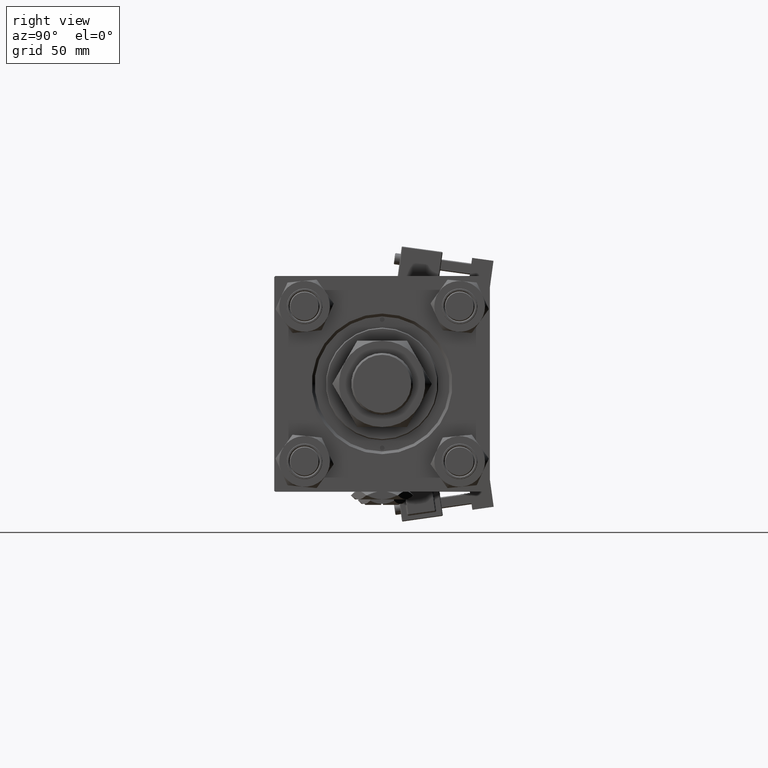
[diagram: clean part render]
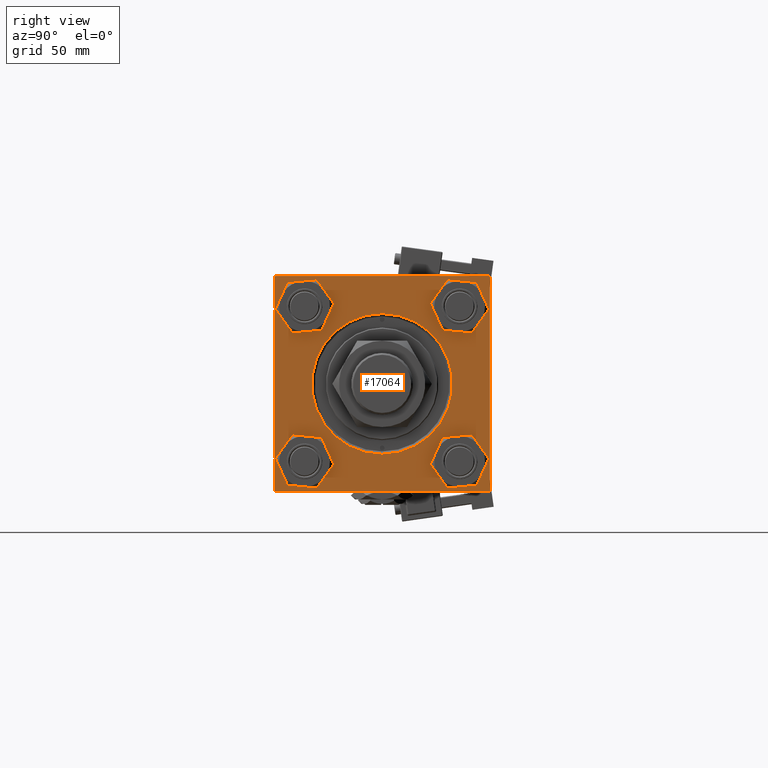
[diagram: same view with one face highlighted and labeled with its STEP entity id]
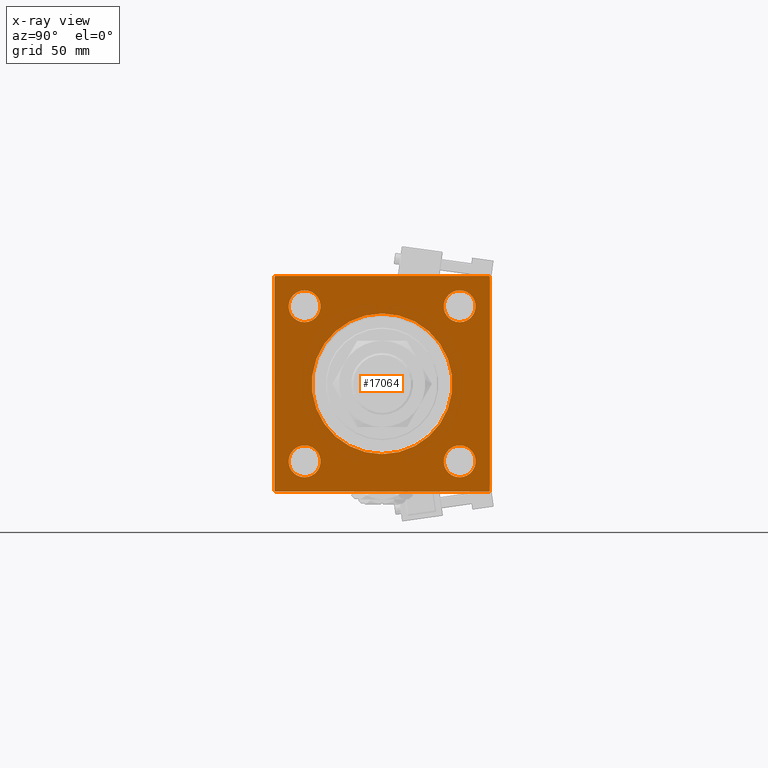
[diagram: x-ray of the same camera — body ghosted, the highlighted face saturated]
A machine part, right view. The second image highlights one B-rep face of the part: STEP entity #17064.
The next image is the same camera in x-ray: the body ghosted, the highlighted face saturated — about 0% of this face is hidden behind the body in this view.
In plain terms, the highlighted planar face has unit normal (-1, 0, 0).
Its self-contained STEP definition (entity closure, byte-faithful):
#179 = EDGE_CURVE ( 'NONE', #54655, #2252, #49750, .T. ) ;
#326 = DIRECTION ( 'NONE',  ( 0.000000000000000000, -1.000000000000000000, -1.206764157201257291E-16 ) ) ;
#420 = DIRECTION ( 'NONE',  ( -0.000000000000000000, 0.7071067811865279218, 0.7071067811865672237 ) ) ;
#676 = CARTESIAN_POINT ( 'NONE',  ( 179.0000000000000000, -41.34999999999998721, 32.85000000000000142 ) ) ;
#1581 = AXIS2_PLACEMENT_3D ( 'NONE', #42991, #9108, #39292 ) ;
#1683 = CARTESIAN_POINT ( 'NONE',  ( 179.0000000000000000, -56.99999999999995737, -57.49999999999997868 ) ) ;
#1837 = EDGE_CURVE ( 'NONE', #32122, #11723, #56133, .T. ) ;
#2072 = CARTESIAN_POINT ( 'NONE',  ( 179.0000000000000000, -56.99999999999998579, 57.49999999999999289 ) ) ;
#2252 = VERTEX_POINT ( 'NONE', #676 ) ;
#2552 = VECTOR ( 'NONE', #12977, 1000.000000000000000 ) ;
#2992 = CARTESIAN_POINT ( 'NONE',  ( 179.0000000000000000, -57.49999999999999289, 57.49999999999999289 ) ) ;
#3260 = CARTESIAN_POINT ( 'NONE',  ( 179.0000000000000000, 0.000000000000000000, -37.50000000000000711 ) ) ;
#3269 = CARTESIAN_POINT ( 'NONE',  ( 179.0000000000000000, 41.34999999999999432, -32.84999999999999432 ) ) ;
#3282 = ORIENTED_EDGE ( 'NONE', *, *, #1837, .F. ) ;
#3321 = VERTEX_POINT ( 'NONE', #15503 ) ;
#3363 = AXIS2_PLACEMENT_3D ( 'NONE', #28380, #45742, #6735 ) ;
#3781 = ORIENTED_EDGE ( 'NONE', *, *, #179, .T. ) ;
#4045 = ORIENTED_EDGE ( 'NONE', *, *, #46420, .T. ) ;
#4103 = EDGE_CURVE ( 'NONE', #32536, #21458, #11582, .T. ) ;
#4124 = DIRECTION ( 'NONE',  ( -0.000000000000000000, -0.7071067811865328068, -0.7071067811865622277 ) ) ;
#4572 = CARTESIAN_POINT ( 'NONE',  ( 179.0000000000000000, 57.50000000000000000, 57.50000000000000711 ) ) ;
#4848 = DIRECTION ( 'NONE',  ( 0.000000000000000000, 0.000000000000000000, -1.000000000000000000 ) ) ;
#5371 = VECTOR ( 'NONE', #40000, 1000.000000000000000 ) ;
#5941 = DIRECTION ( 'NONE',  ( -1.000000000000000000, 0.000000000000000000, -0.000000000000000000 ) ) ;
#6560 = FACE_BOUND ( 'NONE', #39640, .T. ) ;
#6661 = EDGE_CURVE ( 'NONE', #45508, #27756, #46970, .T. ) ;
#6735 = DIRECTION ( 'NONE',  ( 0.000000000000000000, 0.000000000000000000, 1.000000000000000000 ) ) ;
#6838 = PLANE ( 'NONE',  #10880 ) ;
#7321 = CARTESIAN_POINT ( 'NONE',  ( 179.0000000000000000, -41.34999999999998721, 49.85000000000002274 ) ) ;
#7786 = ORIENTED_EDGE ( 'NONE', *, *, #6661, .T. ) ;
#8007 = VECTOR ( 'NONE', #326, 1000.000000000000000 ) ;
#8298 = LINE ( 'NONE', #4572, #53031 ) ;
#9041 = EDGE_CURVE ( 'NONE', #32122, #3321, #47689, .T. ) ;
#9108 = DIRECTION ( 'NONE',  ( -1.000000000000000000, 0.000000000000000000, -0.000000000000000000 ) ) ;
#9642 = DIRECTION ( 'NONE',  ( 0.000000000000000000, 0.000000000000000000, 1.000000000000000000 ) ) ;
#9884 = DIRECTION ( 'NONE',  ( -1.000000000000000000, 0.000000000000000000, -0.000000000000000000 ) ) ;
#10006 = VERTEX_POINT ( 'NONE', #40882 ) ;
#10534 = ORIENTED_EDGE ( 'NONE', *, *, #18452, .T. ) ;
#10827 = FACE_BOUND ( 'NONE', #22897, .T. ) ;
#10880 = AXIS2_PLACEMENT_3D ( 'NONE', #37584, #28206, #37024 ) ;
#11001 = VERTEX_POINT ( 'NONE', #29200 ) ;
#11529 = AXIS2_PLACEMENT_3D ( 'NONE', #53426, #9884, #44618 ) ;
#11582 = CIRCLE ( 'NONE', #1581, 8.500000000000007105 ) ;
#11723 = VERTEX_POINT ( 'NONE', #1683 ) ;
#11829 = DIRECTION ( 'NONE',  ( 0.000000000000000000, 0.000000000000000000, -1.000000000000000000 ) ) ;
#11957 = AXIS2_PLACEMENT_3D ( 'NONE', #23633, #14524, #32461 ) ;
#12201 = DIRECTION ( 'NONE',  ( -1.000000000000000000, 0.000000000000000000, -0.000000000000000000 ) ) ;
#12657 = CIRCLE ( 'NONE', #44482, 8.500000000000007105 ) ;
#12850 = EDGE_CURVE ( 'NONE', #17595, #42291, #18924, .T. ) ;
#12977 = DIRECTION ( 'NONE',  ( 0.000000000000000000, 0.7071067811865721087, -0.7071067811865230368 ) ) ;
#12989 = CARTESIAN_POINT ( 'NONE',  ( 179.0000000000000000, 4.592425496802575156E-15, 37.50000000000000711 ) ) ;
#13129 = CARTESIAN_POINT ( 'NONE',  ( 179.0000000000000000, 57.50000000000000000, -57.49999999999996447 ) ) ;
#13189 = EDGE_CURVE ( 'NONE', #30663, #40216, #18931, .T. ) ;
#14524 = DIRECTION ( 'NONE',  ( -1.000000000000000000, 0.000000000000000000, -0.000000000000000000 ) ) ;
#15162 = ORIENTED_EDGE ( 'NONE', *, *, #13189, .T. ) ;
#15503 = CARTESIAN_POINT ( 'NONE',  ( 179.0000000000000000, 57.50000000000000000, -56.99999999999994316 ) ) ;
#15939 = CARTESIAN_POINT ( 'NONE',  ( 179.0000000000000000, -41.34999999999998721, -41.35000000000000853 ) ) ;
#16218 = DIRECTION ( 'NONE',  ( 0.000000000000000000, 0.000000000000000000, 1.000000000000000000 ) ) ;
#16258 = EDGE_CURVE ( 'NONE', #27756, #45508, #12657, .T. ) ;
#16473 = DIRECTION ( 'NONE',  ( 0.000000000000000000, 0.000000000000000000, 1.000000000000000000 ) ) ;
#17056 = VECTOR ( 'NONE', #420, 1000.000000000000000 ) ;
#17064 = ADVANCED_FACE ( 'NONE', ( #37317, #23646, #6560, #10827, #36745, #32472 ), #6838, .F. ) ;
#17595 = VERTEX_POINT ( 'NONE', #3260 ) ;
#17624 = CARTESIAN_POINT ( 'NONE',  ( 179.0000000000000000, 41.34999999999999432, 41.35000000000000142 ) ) ;
#18020 = AXIS2_PLACEMENT_3D ( 'NONE', #48650, #5941, #9642 ) ;
#18376 = VECTOR ( 'NONE', #4124, 1000.000000000000000 ) ;
#18452 = EDGE_CURVE ( 'NONE', #11001, #10006, #23678, .T. ) ;
#18924 = CIRCLE ( 'NONE', #47095, 37.50000000000000711 ) ;
#18931 = LINE ( 'NONE', #31750, #5371 ) ;
#18961 = VECTOR ( 'NONE', #50720, 1000.000000000000000 ) ;
#20528 = CARTESIAN_POINT ( 'NONE',  ( 179.0000000000000000, 56.99999999999997158, 57.50000000000000711 ) ) ;
#21226 = LINE ( 'NONE', #51411, #18376 ) ;
#21458 = VERTEX_POINT ( 'NONE', #3269 ) ;
#21475 = LINE ( 'NONE', #2992, #42918 ) ;
#21945 = ORIENTED_EDGE ( 'NONE', *, *, #40285, .F. ) ;
#22331 = EDGE_CURVE ( 'NONE', #37578, #55690, #21475, .T. ) ;
#22897 = EDGE_LOOP ( 'NONE', ( #44475, #3781 ) ) ;
#23311 = DIRECTION ( 'NONE',  ( 0.000000000000000000, 0.000000000000000000, 1.000000000000000000 ) ) ;
#23633 = CARTESIAN_POINT ( 'NONE',  ( 179.0000000000000000, -41.34999999999998721, 41.35000000000000853 ) ) ;
#23646 = FACE_BOUND ( 'NONE', #54413, .T. ) ;
#23678 = CIRCLE ( 'NONE', #30988, 8.500000000000007105 ) ;
#24596 = ORIENTED_EDGE ( 'NONE', *, *, #22331, .T. ) ;
#25721 = EDGE_CURVE ( 'NONE', #40216, #37578, #21226, .T. ) ;
#26363 = LINE ( 'NONE', #51985, #2552 ) ;
#26458 = DIRECTION ( 'NONE',  ( -1.000000000000000000, 0.000000000000000000, -0.000000000000000000 ) ) ;
#27594 = CARTESIAN_POINT ( 'NONE',  ( 179.0000000000000000, -41.34999999999998721, -32.85000000000000142 ) ) ;
#27756 = VERTEX_POINT ( 'NONE', #27594 ) ;
#28206 = DIRECTION ( 'NONE',  ( -1.000000000000000000, 0.000000000000000000, -0.000000000000000000 ) ) ;
#28380 = CARTESIAN_POINT ( 'NONE',  ( 179.0000000000000000, -41.34999999999998721, 41.35000000000000853 ) ) ;
#28645 = EDGE_LOOP ( 'NONE', ( #7786, #43289 ) ) ;
#28795 = CARTESIAN_POINT ( 'NONE',  ( 179.0000000000000000, -57.49999999999999289, 56.99999999999996447 ) ) ;
#29200 = CARTESIAN_POINT ( 'NONE',  ( 179.0000000000000000, 41.34999999999999432, 32.84999999999999432 ) ) ;
#29309 = CARTESIAN_POINT ( 'NONE',  ( 179.0000000000000000, 57.00000000000000000, -57.49999999999996447 ) ) ;
#30018 = ORIENTED_EDGE ( 'NONE', *, *, #4103, .T. ) ;
#30663 = VERTEX_POINT ( 'NONE', #49093 ) ;
#30988 = AXIS2_PLACEMENT_3D ( 'NONE', #17624, #26458, #23311 ) ;
#31750 = CARTESIAN_POINT ( 'NONE',  ( 179.0000000000000000, 57.50000000000000000, 57.50000000000000711 ) ) ;
#31916 = EDGE_CURVE ( 'NONE', #2252, #54655, #38341, .T. ) ;
#32122 = VERTEX_POINT ( 'NONE', #29309 ) ;
#32183 = EDGE_LOOP ( 'NONE', ( #24596, #44203, #3282, #55001, #21945, #53001, #15162, #53668 ) ) ;
#32364 = CARTESIAN_POINT ( 'NONE',  ( 179.0000000000000000, -41.34999999999998721, -49.85000000000002274 ) ) ;
#32461 = DIRECTION ( 'NONE',  ( 0.000000000000000000, 0.000000000000000000, 1.000000000000000000 ) ) ;
#32472 = FACE_OUTER_BOUND ( 'NONE', #32183, .T. ) ;
#32536 = VERTEX_POINT ( 'NONE', #39442 ) ;
#33056 = CARTESIAN_POINT ( 'NONE',  ( 179.0000000000000000, -57.49999999999999289, -56.99999999999997868 ) ) ;
#33349 = LINE ( 'NONE', #20528, #18961 ) ;
#33963 = DIRECTION ( 'NONE',  ( 0.000000000000000000, 0.000000000000000000, 1.000000000000000000 ) ) ;
#36745 = FACE_BOUND ( 'NONE', #46819, .T. ) ;
#37024 = DIRECTION ( 'NONE',  ( -0.000000000000000000, 0.000000000000000000, 1.000000000000000000 ) ) ;
#37317 = FACE_BOUND ( 'NONE', #28645, .T. ) ;
#37575 = DIRECTION ( 'NONE',  ( -1.000000000000000000, 0.000000000000000000, -0.000000000000000000 ) ) ;
#37578 = VERTEX_POINT ( 'NONE', #28795 ) ;
#37584 = CARTESIAN_POINT ( 'NONE',  ( 179.0000000000000000, 0.000000000000000000, 0.000000000000000000 ) ) ;
#38129 = CARTESIAN_POINT ( 'NONE',  ( 179.0000000000000000, 0.000000000000000000, 0.000000000000000000 ) ) ;
#38341 = CIRCLE ( 'NONE', #11957, 8.500000000000007105 ) ;
#38517 = CARTESIAN_POINT ( 'NONE',  ( 179.0000000000000000, 41.34999999999999432, -41.35000000000000142 ) ) ;
#38795 = AXIS2_PLACEMENT_3D ( 'NONE', #44571, #53665, #49405 ) ;
#39292 = DIRECTION ( 'NONE',  ( 0.000000000000000000, 0.000000000000000000, 1.000000000000000000 ) ) ;
#39442 = CARTESIAN_POINT ( 'NONE',  ( 179.0000000000000000, 41.34999999999999432, -49.85000000000001563 ) ) ;
#39640 = EDGE_LOOP ( 'NONE', ( #10534, #42749 ) ) ;
#40000 = DIRECTION ( 'NONE',  ( 0.000000000000000000, -1.000000000000000000, -1.206764157201257291E-16 ) ) ;
#40216 = VERTEX_POINT ( 'NONE', #2072 ) ;
#40285 = EDGE_CURVE ( 'NONE', #46558, #3321, #8298, .T. ) ;
#40882 = CARTESIAN_POINT ( 'NONE',  ( 179.0000000000000000, 41.34999999999999432, 49.85000000000001563 ) ) ;
#42291 = VERTEX_POINT ( 'NONE', #12989 ) ;
#42749 = ORIENTED_EDGE ( 'NONE', *, *, #52455, .T. ) ;
#42918 = VECTOR ( 'NONE', #11829, 1000.000000000000000 ) ;
#42991 = CARTESIAN_POINT ( 'NONE',  ( 179.0000000000000000, 41.34999999999999432, -41.35000000000000142 ) ) ;
#43289 = ORIENTED_EDGE ( 'NONE', *, *, #16258, .T. ) ;
#43589 = ORIENTED_EDGE ( 'NONE', *, *, #43791, .T. ) ;
#43641 = ORIENTED_EDGE ( 'NONE', *, *, #12850, .T. ) ;
#43791 = EDGE_CURVE ( 'NONE', #21458, #32536, #49615, .T. ) ;
#44203 = ORIENTED_EDGE ( 'NONE', *, *, #48287, .T. ) ;
#44475 = ORIENTED_EDGE ( 'NONE', *, *, #31916, .T. ) ;
#44482 = AXIS2_PLACEMENT_3D ( 'NONE', #15939, #37575, #16218 ) ;
#44571 = CARTESIAN_POINT ( 'NONE',  ( 179.0000000000000000, -41.34999999999998721, -41.35000000000000853 ) ) ;
#44618 = DIRECTION ( 'NONE',  ( 0.000000000000000000, 0.000000000000000000, 1.000000000000000000 ) ) ;
#45508 = VERTEX_POINT ( 'NONE', #32364 ) ;
#45742 = DIRECTION ( 'NONE',  ( -1.000000000000000000, 0.000000000000000000, -0.000000000000000000 ) ) ;
#46039 = CARTESIAN_POINT ( 'NONE',  ( 179.0000000000000000, 57.50000000000000000, 57.00000000000000711 ) ) ;
#46420 = EDGE_CURVE ( 'NONE', #42291, #17595, #50628, .T. ) ;
#46558 = VERTEX_POINT ( 'NONE', #46039 ) ;
#46819 = EDGE_LOOP ( 'NONE', ( #43641, #4045 ) ) ;
#46970 = CIRCLE ( 'NONE', #38795, 8.500000000000007105 ) ;
#47095 = AXIS2_PLACEMENT_3D ( 'NONE', #38129, #12201, #16473 ) ;
#47122 = CIRCLE ( 'NONE', #18020, 8.500000000000007105 ) ;
#47689 = LINE ( 'NONE', #52504, #17056 ) ;
#48287 = EDGE_CURVE ( 'NONE', #55690, #11723, #26363, .T. ) ;
#48650 = CARTESIAN_POINT ( 'NONE',  ( 179.0000000000000000, 41.34999999999999432, 41.35000000000000142 ) ) ;
#48659 = AXIS2_PLACEMENT_3D ( 'NONE', #38517, #55025, #33963 ) ;
#49093 = CARTESIAN_POINT ( 'NONE',  ( 179.0000000000000000, 56.99999999999997158, 57.50000000000000711 ) ) ;
#49405 = DIRECTION ( 'NONE',  ( 0.000000000000000000, 0.000000000000000000, 1.000000000000000000 ) ) ;
#49615 = CIRCLE ( 'NONE', #48659, 8.500000000000007105 ) ;
#49750 = CIRCLE ( 'NONE', #3363, 8.500000000000007105 ) ;
#50628 = CIRCLE ( 'NONE', #11529, 37.50000000000000711 ) ;
#50720 = DIRECTION ( 'NONE',  ( 0.000000000000000000, -0.7071067811865672237, 0.7071067811865279218 ) ) ;
#51411 = CARTESIAN_POINT ( 'NONE',  ( 179.0000000000000000, -57.49999999999999289, 56.99999999999996447 ) ) ;
#51985 = CARTESIAN_POINT ( 'NONE',  ( 179.0000000000000000, -56.99999999999995737, -57.49999999999997868 ) ) ;
#52455 = EDGE_CURVE ( 'NONE', #10006, #11001, #47122, .T. ) ;
#52504 = CARTESIAN_POINT ( 'NONE',  ( 179.0000000000000000, 57.50000000000000000, -56.99999999999994316 ) ) ;
#53001 = ORIENTED_EDGE ( 'NONE', *, *, #53062, .T. ) ;
#53031 = VECTOR ( 'NONE', #4848, 1000.000000000000000 ) ;
#53062 = EDGE_CURVE ( 'NONE', #46558, #30663, #33349, .T. ) ;
#53426 = CARTESIAN_POINT ( 'NONE',  ( 179.0000000000000000, 0.000000000000000000, 0.000000000000000000 ) ) ;
#53665 = DIRECTION ( 'NONE',  ( -1.000000000000000000, 0.000000000000000000, -0.000000000000000000 ) ) ;
#53668 = ORIENTED_EDGE ( 'NONE', *, *, #25721, .T. ) ;
#54413 = EDGE_LOOP ( 'NONE', ( #30018, #43589 ) ) ;
#54655 = VERTEX_POINT ( 'NONE', #7321 ) ;
#55001 = ORIENTED_EDGE ( 'NONE', *, *, #9041, .T. ) ;
#55025 = DIRECTION ( 'NONE',  ( -1.000000000000000000, 0.000000000000000000, -0.000000000000000000 ) ) ;
#55690 = VERTEX_POINT ( 'NONE', #33056 ) ;
#56133 = LINE ( 'NONE', #13129, #8007 ) ;